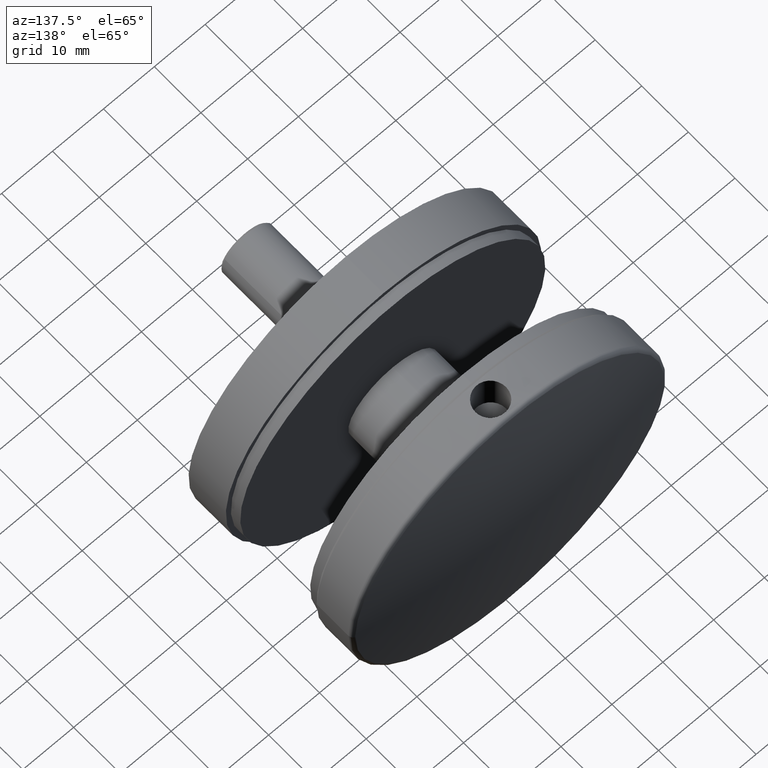
[diagram: clean part render]
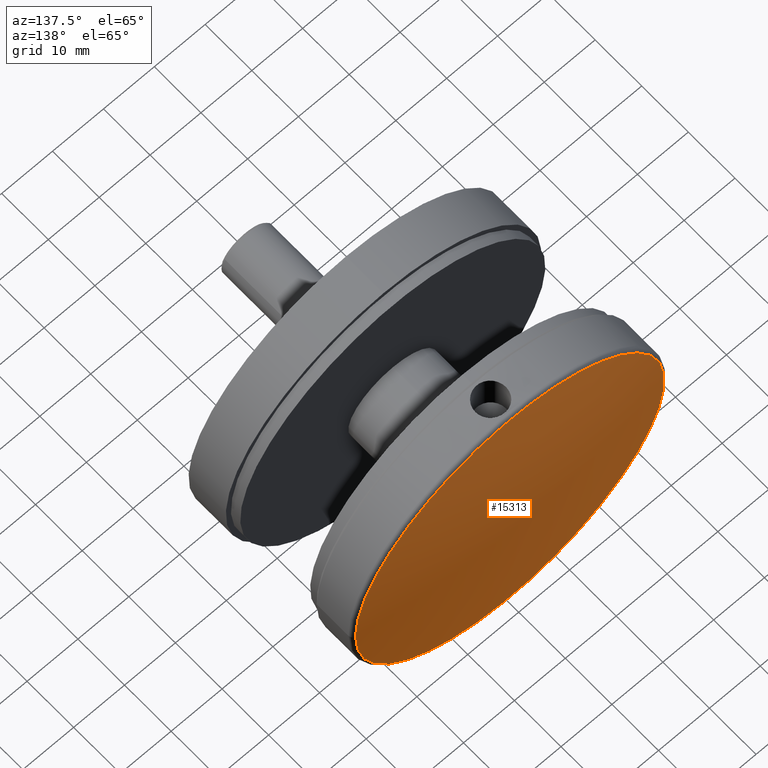
[diagram: same view with one face highlighted and labeled with its STEP entity id]
A machine part, auxiliary view. The second image highlights one B-rep face of the part: STEP entity #15313.
In plain terms, the highlighted spherical surface has radius 161.667 mm.
Its self-contained STEP definition (entity closure, byte-faithful):
#1128 = CARTESIAN_POINT ( 'NONE',  ( 30.35018648984651790, 8.125579022921964878, 0.000000000000000000 ) ) ;
#2401 = AXIS2_PLACEMENT_3D ( 'NONE', #16124, #17424, #4844 ) ;
#4458 = CARTESIAN_POINT ( 'NONE',  ( 0.000000000000000000, -150.6666666666658045, 0.000000000000000000 ) ) ;
#4844 = DIRECTION ( 'NONE',  ( 1.000000000000000000, 9.716678051211115179E-16, 0.000000000000000000 ) ) ;
#5772 = DIRECTION ( 'NONE',  ( 0.000000000000000000, -0.000000000000000000, 1.000000000000000000 ) ) ;
#7024 = DIRECTION ( 'NONE',  ( 1.000000000000000000, 1.030103837281078294E-15, 0.000000000000000000 ) ) ;
#8311 = VERTEX_POINT ( 'NONE', #1128 ) ;
#8500 = SPHERICAL_SURFACE ( 'NONE', #17201, 161.6666666666658614 ) ;
#9917 = ORIENTED_EDGE ( 'NONE', *, *, #15862, .T. ) ;
#10488 = CIRCLE ( 'NONE', #2401, 30.35018648984666711 ) ;
#14339 = EDGE_LOOP ( 'NONE', ( #9917 ) ) ;
#15313 = ADVANCED_FACE ( 'NONE', ( #16457 ), #8500, .T. ) ;
#15862 = EDGE_CURVE ( 'NONE', #8311, #8311, #10488, .T. ) ;
#16124 = CARTESIAN_POINT ( 'NONE',  ( -1.502512562186208390E-13, 8.125579022921936456, 0.000000000000000000 ) ) ;
#16457 = FACE_OUTER_BOUND ( 'NONE', #14339, .T. ) ;
#17201 = AXIS2_PLACEMENT_3D ( 'NONE', #4458, #5772, #7024 ) ;
#17424 = DIRECTION ( 'NONE',  ( -9.462128050782584868E-16, 1.000000000000000000, 0.000000000000000000 ) ) ;